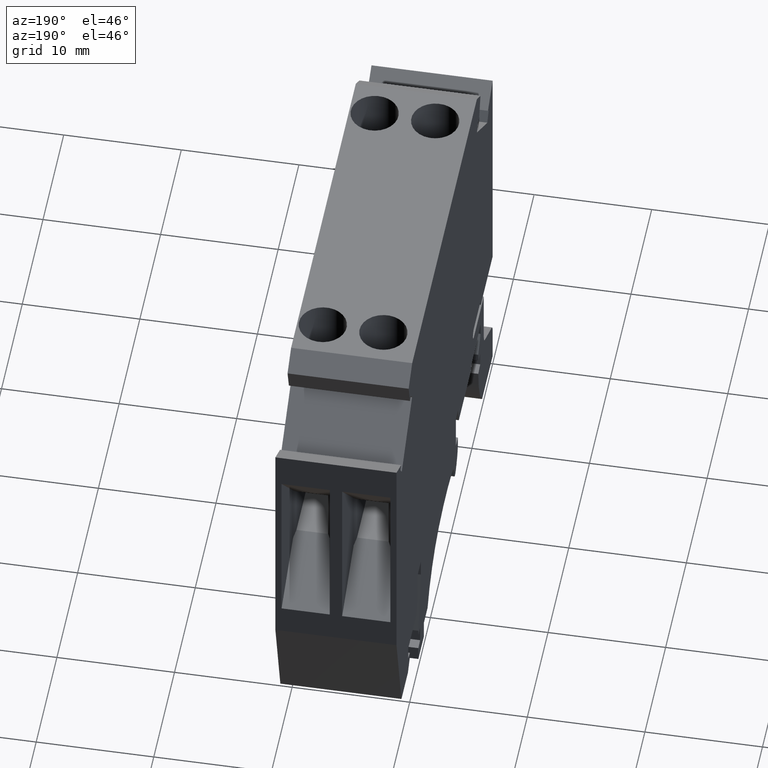
[diagram: clean part render]
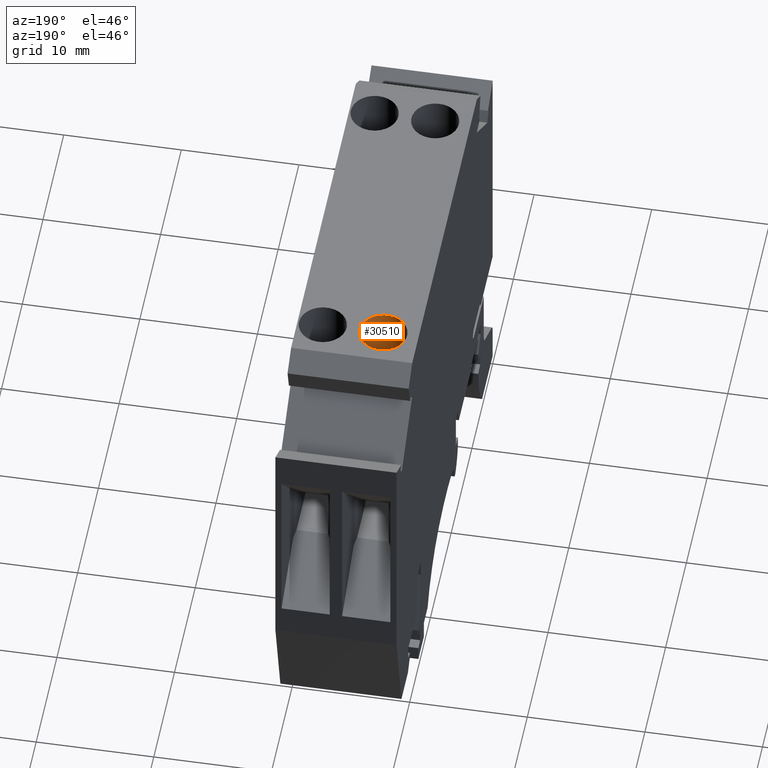
[diagram: same view with one face highlighted and labeled with its STEP entity id]
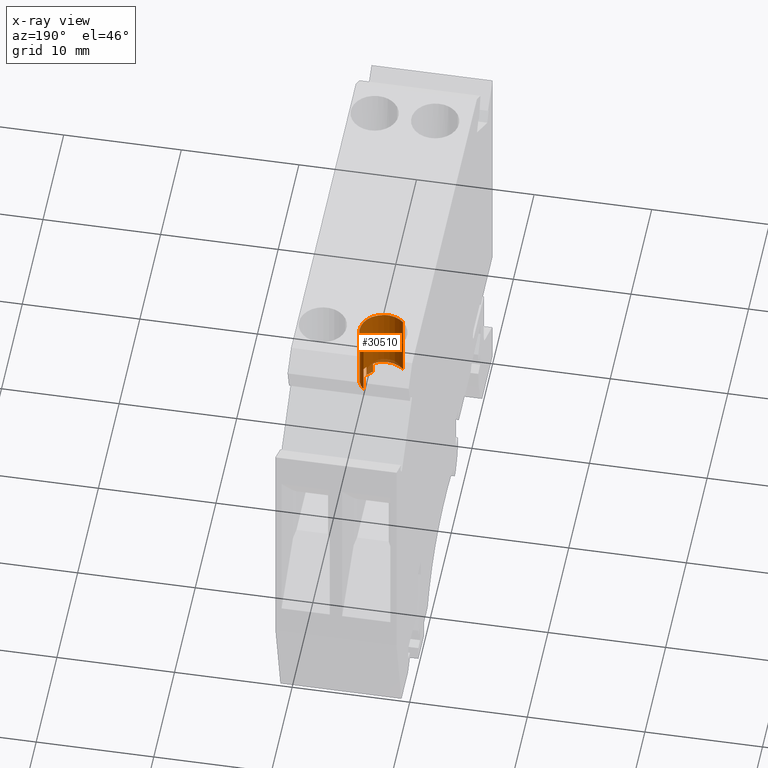
[diagram: x-ray of the same camera — body ghosted, the highlighted face saturated]
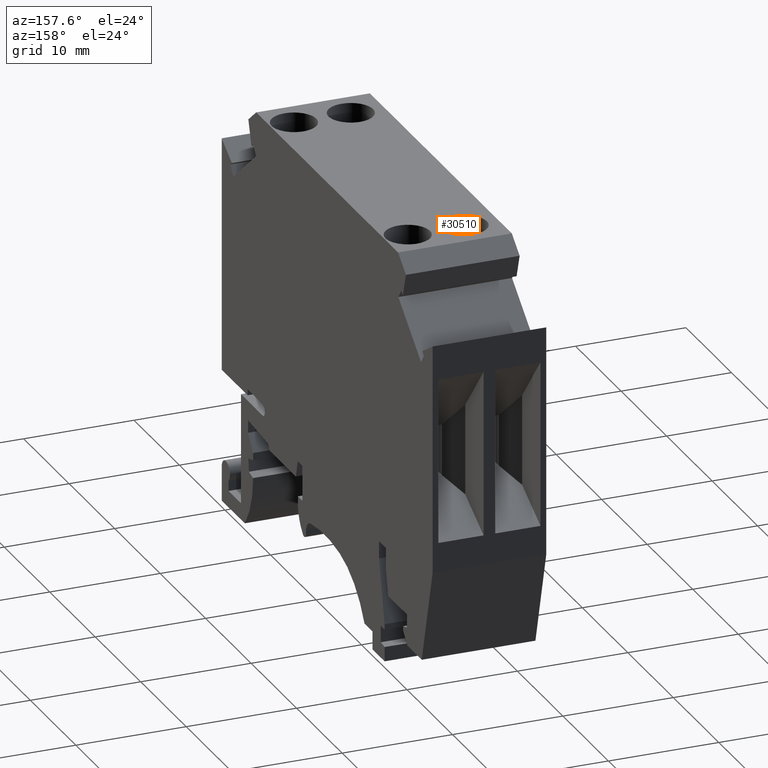
[diagram: same view with one face highlighted and labeled with its STEP entity id]
A machine part, auxiliary view. The second image highlights one B-rep face of the part: STEP entity #30510.
The next image is the same camera in x-ray: the body ghosted, the highlighted face saturated — about 5% of this face is hidden behind the body in this view.
A second angle (auxiliary view) of the same face is appended — the face is thin or edge-on in the first view.
In plain terms, the highlighted cylindrical surface (edge-blend (fillet) strip) has radius 2.025 mm, axis along (-0, -0, 1).
Its self-contained STEP definition (entity closure, byte-faithful):
#27010=CARTESIAN_POINT('',(-9.17709853380769,42.9295237515583,
3.00000000000001));
#27020=DIRECTION('',(-1.23259516440783E-32,1.,-2.46519032881566E-32));
#27030=DIRECTION('',(0.707106781186548,-2.46519032881566E-32,
0.707106781186547));
#27040=AXIS2_PLACEMENT_3D('',#27010,#27020,#27030);
#27050=CIRCLE('',#27040,2.025);
#27060=CARTESIAN_POINT('',(-11.1806523298767,42.9295237515583,
3.293933982822));
#27070=VERTEX_POINT('',#27060);
#27080=CARTESIAN_POINT('',(-7.74520730190493,42.9295237515583,
4.43189123190276));
#27090=VERTEX_POINT('',#27080);
#27100=EDGE_CURVE('',#27070,#27090,#27050,.T.);
#27120=CARTESIAN_POINT('',(-10.6089897657104,42.9295237515583,
1.56810876809725));
#27130=VERTEX_POINT('',#27120);
#27160=EDGE_CURVE('',#27130,#27070,#27050,.T.);
#29850=CARTESIAN_POINT('',(-9.17709853380769,42.9295237515583,
3.00000000000001));
#29860=DIRECTION('',(-1.23259516440783E-32,1.,-2.46519032881566E-32));
#29870=DIRECTION('',(0.707106781186548,-2.46519032881566E-32,
0.707106781186547));
#29880=AXIS2_PLACEMENT_3D('',#29850,#29860,#29870);
#29890=CYLINDRICAL_SURFACE('',#29880,2.025);
#29900=CARTESIAN_POINT('',(-9.17709853380769,37.2755174006122,
3.00000000000001));
#29910=DIRECTION('',(-1.23259516440783E-32,1.,-2.46519032881566E-32));
#29920=DIRECTION('',(0.707106781186548,2.61472919763157E-32,
0.707106781186547));
#29930=AXIS2_PLACEMENT_3D('',#29900,#29910,#29920);
#29940=CIRCLE('',#29930,2.025);
#29950=CARTESIAN_POINT('',(-10.3399524311492,37.2755174006122,
4.65782864417214));
#29960=VERTEX_POINT('',#29950);
#29970=CARTESIAN_POINT('',(-7.74520730190493,37.2755174006122,
4.43189123190276));
#29980=VERTEX_POINT('',#29970);
#29990=EDGE_CURVE('',#29960,#29980,#29940,.T.);
#30000=ORIENTED_EDGE('',*,*,#29990,.F.);
#30010=CARTESIAN_POINT('',(-7.74520730190493,42.9295237515583,
4.43189123190276));
#30020=DIRECTION('',(-1.23259516440783E-32,1.,-2.46519032881566E-32));
#30030=VECTOR('',#30020,1.);
#30040=LINE('',#30010,#30030);
#30050=EDGE_CURVE('',#29980,#27090,#30040,.T.);
#30060=ORIENTED_EDGE('',*,*,#30050,.F.);
#30070=ORIENTED_EDGE('',*,*,#27100,.T.);
#30080=ORIENTED_EDGE('',*,*,#27160,.T.);
#30090=CARTESIAN_POINT('',(-10.6089897657104,42.9295237515583,
1.56810876809725));
#30100=DIRECTION('',(-1.23259516440783E-32,1.,-2.46519032881566E-32));
#30110=VECTOR('',#30100,1.);
#30120=LINE('',#30090,#30110);
#30130=CARTESIAN_POINT('',(-10.6089897657104,37.2755174006122,
1.56810876809725));
#30140=VERTEX_POINT('',#30130);
#30150=EDGE_CURVE('',#30140,#27130,#30120,.T.);
#30160=ORIENTED_EDGE('',*,*,#30150,.T.);
#30170=CARTESIAN_POINT('',(-9.17709853380769,37.2755174006122,
3.00000000000001));
#30180=DIRECTION('',(-1.23259516440783E-32,1.,-2.46519032881566E-32));
#30190=DIRECTION('',(0.707106781186548,2.61472919763157E-32,
0.707106781186547));
#30200=AXIS2_PLACEMENT_3D('',#30170,#30180,#30190);
#30210=CIRCLE('',#30200,2.025);
#30220=CARTESIAN_POINT('',(-10.8349271779798,37.2755174006122,
4.16285389734155));
#30230=VERTEX_POINT('',#30220);
#30240=EDGE_CURVE('',#30140,#30230,#30210,.T.);
#30250=ORIENTED_EDGE('',*,*,#30240,.F.);
#30260=CARTESIAN_POINT('',(-10.8349271779798,42.9295237515583,
4.16285389734155));
#30270=DIRECTION('',(-1.23259516440783E-32,1.,-2.46519032881566E-32));
#30280=VECTOR('',#30270,1.);
#30290=LINE('',#30260,#30280);
#30300=CARTESIAN_POINT('',(-10.8349271779798,36.2755174006122,
4.16285389734155));
#30310=VERTEX_POINT('',#30300);
#30320=EDGE_CURVE('',#30310,#30230,#30290,.T.);
#30330=ORIENTED_EDGE('',*,*,#30320,.T.);
#30340=CARTESIAN_POINT('',(-9.17709853380769,36.2755174006122,
3.00000000000001));
#30350=DIRECTION('',(-1.23259516440783E-32,1.,-2.46519032881566E-32));
#30360=DIRECTION('',(0.707106781186548,2.61472919763157E-32,
0.707106781186547));
#30370=AXIS2_PLACEMENT_3D('',#30340,#30350,#30360);
#30380=CIRCLE('',#30370,2.025);
#30390=CARTESIAN_POINT('',(-10.3399524311492,36.2755174006122,
4.65782864417214));
#30400=VERTEX_POINT('',#30390);
#30410=EDGE_CURVE('',#30310,#30400,#30380,.T.);
#30420=ORIENTED_EDGE('',*,*,#30410,.F.);
#30430=CARTESIAN_POINT('',(-10.3399524311492,42.9295237515583,
4.65782864417214));
#30440=DIRECTION('',(-1.23259516440783E-32,1.,-2.46519032881566E-32));
#30450=VECTOR('',#30440,1.);
#30460=LINE('',#30430,#30450);
#30470=EDGE_CURVE('',#30400,#29960,#30460,.T.);
#30480=ORIENTED_EDGE('',*,*,#30470,.F.);
#30490=EDGE_LOOP('',(#30480,#30420,#30330,#30250,#30160,#30080,#30070,
#30060,#30000));
#30500=FACE_OUTER_BOUND('',#30490,.T.);
#30510=ADVANCED_FACE('',(#30500),#29890,.F.);